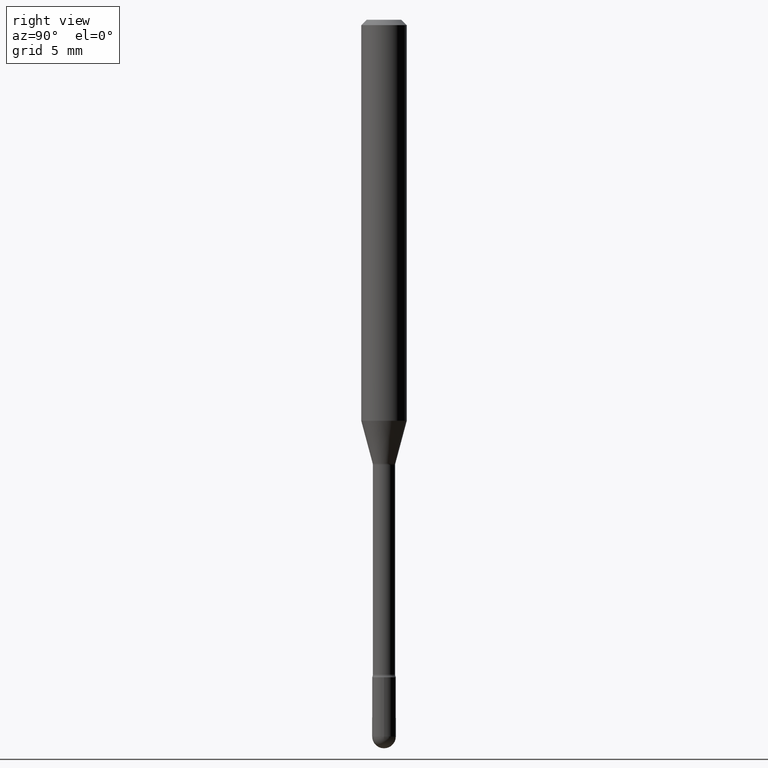
[diagram: clean part render]
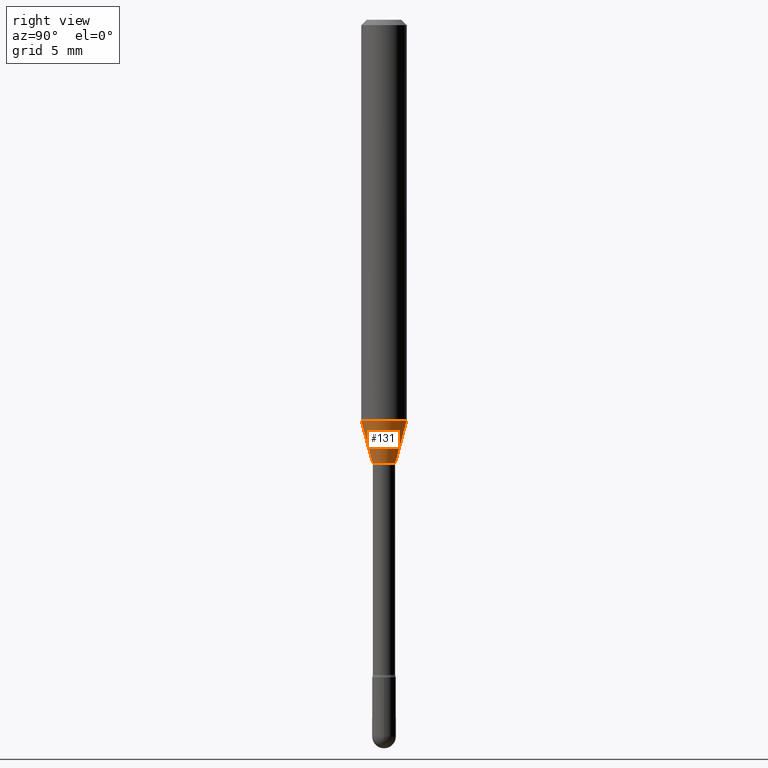
[diagram: same view with one face highlighted and labeled with its STEP entity id]
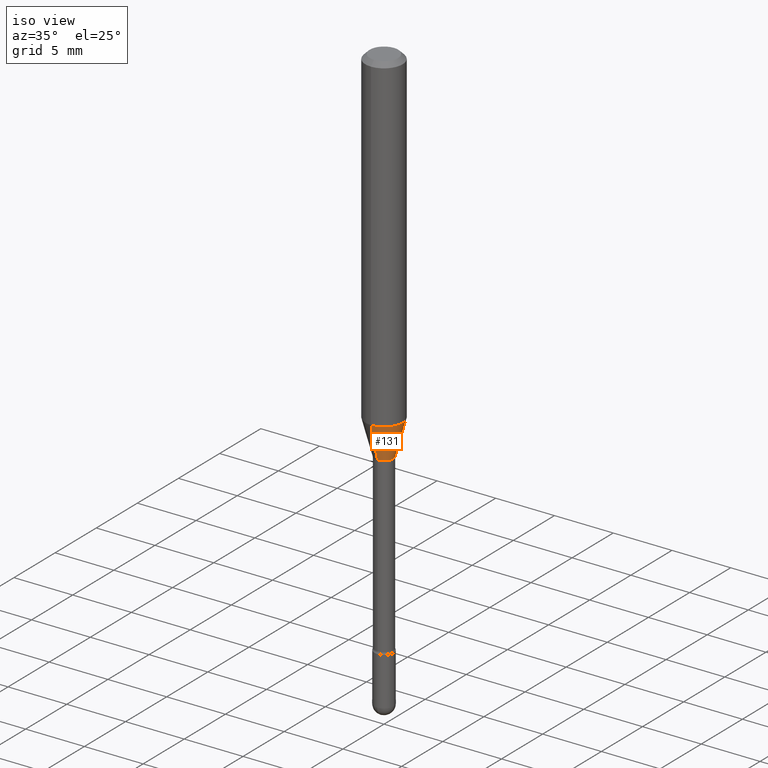
[diagram: same view with one face highlighted and labeled with its STEP entity id]
A machine part, right view. The second image highlights one B-rep face of the part: STEP entity #131.
A second angle (iso view) of the same face is appended — the face is thin or edge-on in the first view.
In plain terms, the highlighted conical surface has half-angle 15 deg.
Its self-contained STEP definition (entity closure, byte-faithful):
#38 = CIRCLE ( 'NONE', #405, 0.03106111260566397914 ) ;
#51 = LINE ( 'NONE', #140, #128 ) ;
#52 = ORIENTED_EDGE ( 'NONE', *, *, #231, .F. ) ;
#84 = CARTESIAN_POINT ( 'NONE',  ( 2.207024792658399071E-16, 0.03106111260565972559, -1.218092501787273019 ) ) ;
#94 = DIRECTION ( 'NONE',  ( -1.807323732225327378E-15, -0.2588190451025177974, 0.9659258262890690894 ) ) ;
#115 = EDGE_CURVE ( 'NONE', #183, #557, #176, .T. ) ;
#124 = DIRECTION ( 'NONE',  ( -2.445516188486523811E-29, 3.491413484690726128E-15, 1.000000000000000000 ) ) ;
#128 = VECTOR ( 'NONE', #94, 39.37007874015748143 ) ;
#131 = ADVANCED_FACE ( 'NONE', ( #428 ), #270, .T. ) ;
#140 = CARTESIAN_POINT ( 'NONE',  ( -2.168985900527321632E-16, -0.03106111260566822921, -1.218092501787272797 ) ) ;
#151 = DIRECTION ( 'NONE',  ( -6.982962677686265922E-15, -1.000000000000000000, 4.397537249142376224E-15 ) ) ;
#176 = CIRCLE ( 'NONE', #494, 0.06250000000000000000 ) ;
#183 = VERTEX_POINT ( 'NONE', #257 ) ;
#193 = CARTESIAN_POINT ( 'NONE',  ( 4.440892098500895360E-16, 0.06249999999999617667, -1.100760976698174742 ) ) ;
#208 = CARTESIAN_POINT ( 'NONE',  ( 3.323958445579647462E-16, 0.03106111260565972559, -1.218092501787273019 ) ) ;
#222 = ORIENTED_EDGE ( 'NONE', *, *, #306, .T. ) ;
#231 = EDGE_CURVE ( 'NONE', #314, #183, #51, .T. ) ;
#240 = LINE ( 'NONE', #84, #395 ) ;
#244 = DIRECTION ( 'NONE',  ( -2.445516188486523811E-29, 3.491413484690726128E-15, 1.000000000000000000 ) ) ;
#252 = CARTESIAN_POINT ( 'NONE',  ( 2.978864932194825835E-29, -4.252864586340746623E-15, -1.218092501787273019 ) ) ;
#257 = CARTESIAN_POINT ( 'NONE',  ( -4.364351673553647002E-16, -0.06250000000000384415, -1.100760976698174076 ) ) ;
#270 = CONICAL_SURFACE ( 'NONE', #343, 0.03106111260566397914, 0.2617993877991498519 ) ;
#304 = DIRECTION ( 'NONE',  ( -6.982962677686265922E-15, -1.000000000000000000, 4.370956789862821150E-15 ) ) ;
#306 = EDGE_CURVE ( 'NONE', #314, #420, #38, .T. ) ;
#310 = EDGE_LOOP ( 'NONE', ( #222, #444, #331, #52 ) ) ;
#314 = VERTEX_POINT ( 'NONE', #334 ) ;
#331 = ORIENTED_EDGE ( 'NONE', *, *, #115, .F. ) ;
#334 = CARTESIAN_POINT ( 'NONE',  ( -2.168985900527321632E-16, -0.03106111260566822921, -1.218092501787272797 ) ) ;
#338 = DIRECTION ( 'NONE',  ( -6.982962677686265922E-15, -1.000000000000000000, 4.397537249142376224E-15 ) ) ;
#343 = AXIS2_PLACEMENT_3D ( 'NONE', #252, #124, #338 ) ;
#364 = EDGE_CURVE ( 'NONE', #420, #557, #240, .T. ) ;
#367 = CARTESIAN_POINT ( 'NONE',  ( 2.978864932194825835E-29, -4.252864586340746623E-15, -1.218092501787273019 ) ) ;
#395 = VECTOR ( 'NONE', #514, 39.37007874015748854 ) ;
#405 = AXIS2_PLACEMENT_3D ( 'NONE', #367, #460, #151 ) ;
#420 = VERTEX_POINT ( 'NONE', #208 ) ;
#428 = FACE_OUTER_BOUND ( 'NONE', #310, .T. ) ;
#444 = ORIENTED_EDGE ( 'NONE', *, *, #364, .T. ) ;
#456 = CARTESIAN_POINT ( 'NONE',  ( 2.691928788169622258E-29, -3.843211717465340284E-15, -1.100760976698174298 ) ) ;
#460 = DIRECTION ( 'NONE',  ( -2.445516188486523811E-29, 3.491413484690726128E-15, 1.000000000000000000 ) ) ;
#494 = AXIS2_PLACEMENT_3D ( 'NONE', #456, #244, #304 ) ;
#514 = DIRECTION ( 'NONE',  ( 1.839019923739597160E-15, 0.2588190451025245142, 0.9659258262890670910 ) ) ;
#557 = VERTEX_POINT ( 'NONE', #193 ) ;